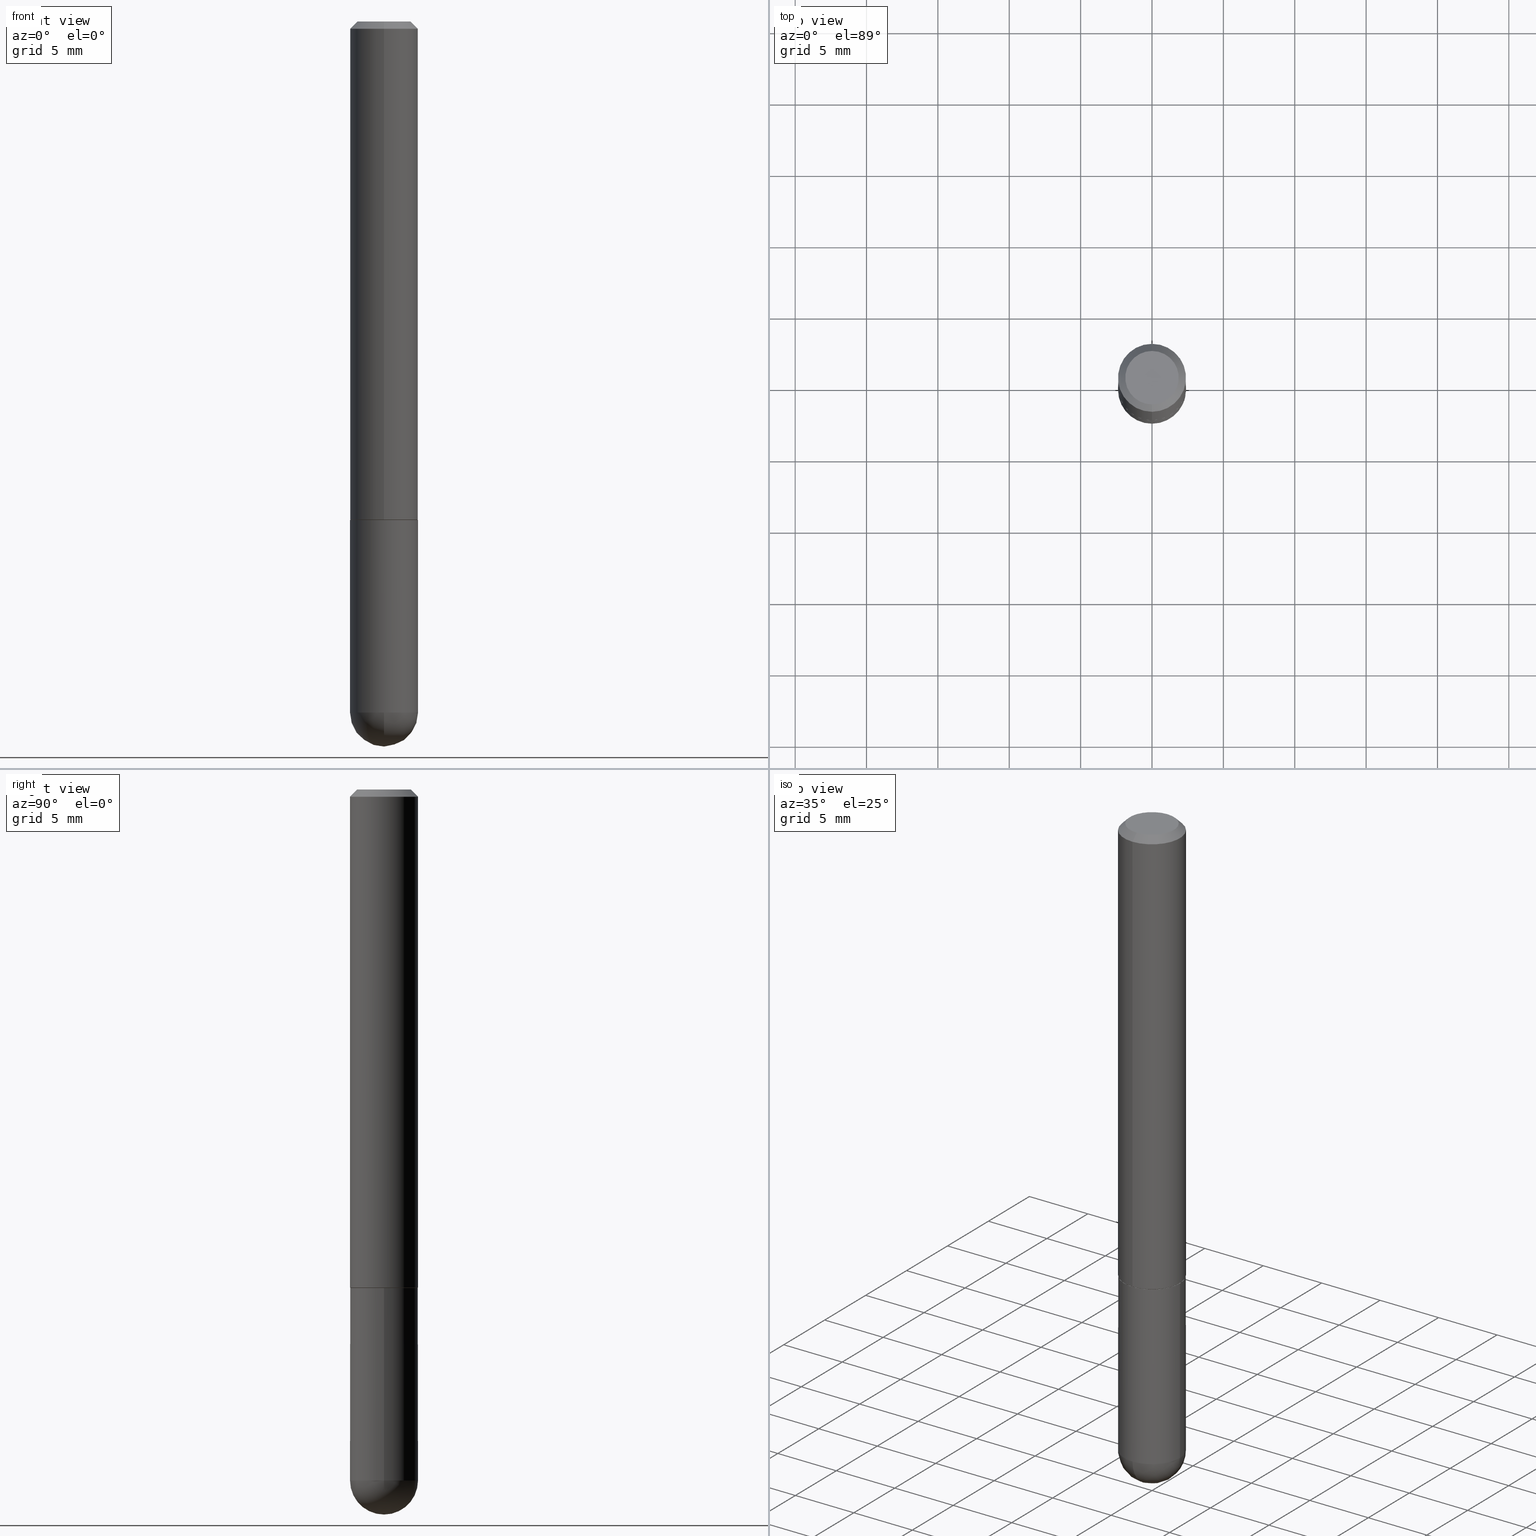
[diagram: canonical four-view strip — front | top / right | iso, engineering-drawing reading convention]
A machine part, canonical four-view strip (front | top / right | iso — engineering-drawing reading convention). The complete STEP part file that produces these views, byte-faithful:
ISO-10303-21;
HEADER;
FILE_DESCRIPTION (( 'STEP AP203' ),
    '1' );
FILE_NAME ('30912.STEP',
    '2024-02-21T16:44:57',
    ( '' ),
    ( '' ),
    'SwSTEP 2.0',
    'SolidWorks 2023',
    '' );
FILE_SCHEMA (( 'CONFIG_CONTROL_DESIGN' ));
ENDSEC;

DATA;
#1 = CIRCLE ( 'NONE', #197, 0.09375000000000001388 ) ;
#2 = DIRECTION ( 'NONE',  ( 5.024295867788362157E-15, 0.7071067811865922037, 0.7071067811865028307 ) ) ;
#3 = EDGE_LOOP ( 'NONE', ( #261, #167 ) ) ;
#4 = APPLICATION_CONTEXT ( 'configuration controlled 3d designs of mechanical parts and assemblies' ) ;
#5 = DIRECTION ( 'NONE',  ( -2.445468806185136597E-29, 3.491481338843145583E-15, 1.000000000000000000 ) ) ;
#6 = ADVANCED_FACE ( 'NONE', ( #397 ), #149, .T. ) ;
#7 = DIRECTION ( 'NONE',  ( 1.000000000000000000, -6.982962677686265922E-15, 4.876176775795935793E-29 ) ) ;
#8 = VERTEX_POINT ( 'NONE', #335 ) ;
#9 = COORDINATED_UNIVERSAL_TIME_OFFSET ( 5, 0, .BEHIND. ) ;
#10 = LENGTH_MEASURE_WITH_UNIT ( LENGTH_MEASURE( 0.02539999999999999897 ), #76 );
#11 = EDGE_LOOP ( 'NONE', ( #330, #229, #30, #180 ) ) ;
#12 = PERSON_AND_ORGANIZATION_ROLE ( 'design_supplier' ) ;
#13 = ORIENTED_EDGE ( 'NONE', *, *, #230, .F. ) ;
#14 = CIRCLE ( 'NONE', #340, 0.09274999999999999911 ) ;
#15 = PERSON_AND_ORGANIZATION ( #78, #103 ) ;
#16 = ADVANCED_FACE ( 'NONE', ( #141 ), #181, .F. ) ;
#17 = ORIENTED_EDGE ( 'NONE', *, *, #55, .F. ) ;
#18 = DATE_AND_TIME ( #239, #250 ) ;
#19 = CARTESIAN_POINT ( 'NONE',  ( -6.546527510330880958E-16, -0.09375000000000009714, 3.274165243096026796E-16 ) ) ;
#20 = CARTESIAN_POINT ( 'NONE',  ( -6.476697883553675688E-16, -0.09275000000000480083, -1.374999999999999778 ) ) ;
#21 = AXIS2_PLACEMENT_3D ( 'NONE', #96, #255, #319 ) ;
#22 = LINE ( 'NONE', #24, #295 ) ;
#23 = CYLINDRICAL_SURFACE ( 'NONE', #26, 0.09375000000000009714 ) ;
#24 = CARTESIAN_POINT ( 'NONE',  ( 6.546527510330878985E-16, 0.09374999999999991673, -0.02000000000000034736 ) ) ;
#25 = DIRECTION ( 'NONE',  ( 1.000000000000000000, -6.982962677686265922E-15, 4.876176775795935793E-29 ) ) ;
#26 = AXIS2_PLACEMENT_3D ( 'NONE', #276, #373, #120 ) ;
#27 = CARTESIAN_POINT ( 'NONE',  ( 6.625811010963275384E-16, 0.09274999999999521128, -1.375000000000000222 ) ) ;
#28 = CARTESIAN_POINT ( 'NONE',  ( 4.889594666967911153E-31, -6.984885851938190023E-17, -0.02000000000000001776 ) ) ;
#29 = LINE ( 'NONE', #162, #171 ) ;
#30 = ORIENTED_EDGE ( 'NONE', *, *, #185, .T. ) ;
#31 = AXIS2_PLACEMENT_3D ( 'NONE', #266, #393, #236 ) ;
#32 = AXIS2_PLACEMENT_3D ( 'NONE', #70, #43, #328 ) ;
#33 = EDGE_CURVE ( 'NONE', #144, #256, #119, .T. ) ;
#34 = DIRECTION ( 'NONE',  ( -2.445468806185136597E-29, 3.491481338843145583E-15, 1.000000000000000000 ) ) ;
#35 = CYLINDRICAL_SURFACE ( 'NONE', #309, 0.09375000000000001388 ) ;
#36 = VERTEX_POINT ( 'NONE', #71 ) ;
#37 = AXIS2_PLACEMENT_3D ( 'NONE', #322, #98, #227 ) ;
#38 = CC_DESIGN_APPROVAL ( #267, ( #94 ) ) ;
#39 = MECHANICAL_CONTEXT ( 'NONE', #4, 'mechanical' ) ;
#40 = EDGE_LOOP ( 'NONE', ( #233, #260, #42, #13 ) ) ;
#41 = PERSON_AND_ORGANIZATION_ROLE ( 'creator' ) ;
#42 = ORIENTED_EDGE ( 'NONE', *, *, #312, .F. ) ;
#43 = DIRECTION ( 'NONE',  ( 0.000000000000000000, 0.000000000000000000, 1.000000000000000000 ) ) ;
#44 = ORIENTED_EDGE ( 'NONE', *, *, #199, .T. ) ;
#45 = AXIS2_PLACEMENT_3D ( 'NONE', #213, #214, #337 ) ;
#46 = EDGE_CURVE ( 'NONE', #36, #110, #240, .T. ) ;
#47 = DIRECTION ( 'NONE',  ( -2.444797333483953649E-29, 3.492442925969092226E-15, 1.000000000000000000 ) ) ;
#48 = PRODUCT ( '30912', '30912', '', ( #39 ) ) ;
#49 = CARTESIAN_POINT ( 'NONE',  ( -6.661338147750496494E-16, -0.09375000000000702216, -1.906249999999999556 ) ) ;
#50 = CYLINDRICAL_SURFACE ( 'NONE', #58, 0.09375000000000001388 ) ;
#51 = DATE_AND_TIME ( #153, #217 ) ;
#52 = DIRECTION ( 'NONE',  ( -2.444797333483953649E-29, 3.492442925969092226E-15, 1.000000000000000000 ) ) ;
#53 = PRODUCT_RELATED_PRODUCT_CATEGORY ( 'detail', '', ( #48 ) ) ;
#54 = DIRECTION ( 'NONE',  ( -1.000000000000000000, 7.105427357601001070E-15, -4.926315508542082329E-29 ) ) ;
#55 = EDGE_CURVE ( 'NONE', #36, #367, #408, .T. ) ;
#56 = CYLINDRICAL_SURFACE ( 'NONE', #111, 0.09375000000000009714 ) ;
#57 = DIRECTION ( 'NONE',  ( -6.982962677686266711E-15, -1.000000000000000000, 3.505871591869138487E-15 ) ) ;
#58 = AXIS2_PLACEMENT_3D ( 'NONE', #339, #124, #25 ) ;
#59 = CC_DESIGN_PERSON_AND_ORGANIZATION_ASSIGNMENT ( #135, #168, ( #125 ) ) ;
#60 = SPHERICAL_SURFACE ( 'NONE', #21, 0.09375000000000026368 ) ;
#61 = VERTEX_POINT ( 'NONE', #49 ) ;
#62 = DIRECTION ( 'NONE',  ( 1.000000000000000000, -6.982962677686265922E-15, 4.883557194083112340E-29 ) ) ;
#63 = ADVANCED_FACE ( 'NONE', ( #136 ), #183, .T. ) ;
#64 = DIRECTION ( 'NONE',  ( 6.982962677686266711E-15, 1.000000000000000000, -3.505871591869138487E-15 ) ) ;
#65 = VERTEX_POINT ( 'NONE', #251 ) ;
#66 = VECTOR ( 'NONE', #151, 39.37007874015748854 ) ;
#67 = DIRECTION ( 'NONE',  ( 2.444797333483953649E-29, -3.492442925969092226E-15, -1.000000000000000000 ) ) ;
#68 = FACE_OUTER_BOUND ( 'NONE', #388, .T. ) ;
#69 = EDGE_CURVE ( 'NONE', #256, #110, #121, .T. ) ;
#70 = CARTESIAN_POINT ( 'NONE',  ( 0.000000000000000000, 0.000000000000000000, 0.000000000000000000 ) ) ;
#71 = CARTESIAN_POINT ( 'NONE',  ( -6.546527510330552594E-16, -0.09375000000000499600, -1.373999999999999666 ) ) ;
#72 = CC_DESIGN_PERSON_AND_ORGANIZATION_ASSIGNMENT ( #139, #364, ( #94 ) ) ;
#73 = APPROVAL_DATE_TIME ( #264, #299 ) ;
#74 = ORIENTED_EDGE ( 'NONE', *, *, #318, .F. ) ;
#75 = ADVANCED_FACE ( 'NONE', ( #248 ), #122, .F. ) ;
#76 =( LENGTH_UNIT ( ) NAMED_UNIT ( * ) SI_UNIT ( $, .METRE. ) );
#77 = DIRECTION ( 'NONE',  ( -6.982962677686266711E-15, -1.000000000000000000, 2.913971193241874850E-15 ) ) ;
#78 = PERSON ( 'UNSPECIFIED', 'UNSPECIFIED', 'UNSPECIFIED', ('UNSPECIFIED'), ('UNSPECIFIED'), ('UNSPECIFIED') ) ;
#79 = ADVANCED_FACE ( 'NONE', ( #189 ), #85, .F. ) ;
#80 = EDGE_LOOP ( 'NONE', ( #297, #44, #212, #172 ) ) ;
#81 = CIRCLE ( 'NONE', #314, 0.09375000000000019429 ) ;
#82 = CC_DESIGN_APPROVAL ( #244, ( #125 ) ) ;
#83 = VERTEX_POINT ( 'NONE', #152 ) ;
#84 = CARTESIAN_POINT ( 'NONE',  ( 3.361596333540435988E-29, -4.802109023207501761E-15, -1.375000000000000000 ) ) ;
#85 = PLANE ( 'NONE',  #277 ) ;
#86 = AXIS2_PLACEMENT_3D ( 'NONE', #287, #131, #159 ) ;
#87 = CARTESIAN_POINT ( 'NONE',  ( 4.889594666967911153E-31, -6.984885851938190023E-17, -0.02000000000000001776 ) ) ;
#88 = DIRECTION ( 'NONE',  ( -6.982962677686265922E-15, -1.000000000000000000, 2.945388672414299892E-15 ) ) ;
#89 = DIMENSIONAL_EXPONENTS ( 1.000000000000000000, 0.000000000000000000, 0.000000000000000000, 0.000000000000000000, 0.000000000000000000, 0.000000000000000000, 0.000000000000000000 ) ;
#90 = EDGE_CURVE ( 'NONE', #110, #83, #269, .T. ) ;
#91 = DIRECTION ( 'NONE',  ( 1.000000000000000000, -6.982962677686261189E-15, 0.000000000000000000 ) ) ;
#92 = CIRCLE ( 'NONE', #327, 0.09375000000000001388 ) ;
#93 = CARTESIAN_POINT ( 'NONE',  ( 4.661674911790416638E-29, -6.655636302169745441E-15, -1.906250000000000000 ) ) ;
#94 = SECURITY_CLASSIFICATION ( '', '', #242 ) ;
#95 = ORIENTED_EDGE ( 'NONE', *, *, #398, .T. ) ;
#96 = CARTESIAN_POINT ( 'NONE',  ( 4.330555133876530390E-29, -7.129818670309794948E-15, -1.906250000000000000 ) ) ;
#97 = ORIENTED_EDGE ( 'NONE', *, *, #342, .F. ) ;
#98 = DIRECTION ( 'NONE',  ( -2.444797333483953649E-29, 3.492442925969092226E-15, 1.000000000000000000 ) ) ;
#99 = ORIENTED_EDGE ( 'NONE', *, *, #331, .F. ) ;
#100 = FACE_OUTER_BOUND ( 'NONE', #160, .T. ) ;
#101 = ORIENTED_EDGE ( 'NONE', *, *, #318, .T. ) ;
#102 = CIRCLE ( 'NONE', #142, 0.09274999999999999911 ) ;
#103 = ORGANIZATION ( 'UNSPECIFIED', 'UNSPECIFIED', '' ) ;
#104 = DIRECTION ( 'NONE',  ( -4.937700262164843076E-15, -0.7071067811865873187, 0.7071067811865077157 ) ) ;
#105 = ORIENTED_EDGE ( 'NONE', *, *, #379, .T. ) ;
#106 = CALENDAR_DATE ( 2024, 21, 2 ) ;
#107 = ORIENTED_EDGE ( 'NONE', *, *, #185, .F. ) ;
#108 =( NAMED_UNIT ( * ) PLANE_ANGLE_UNIT ( ) SI_UNIT ( $, .RADIAN. ) );
#109 = EDGE_CURVE ( 'NONE', #65, #176, #223, .T. ) ;
#110 = VERTEX_POINT ( 'NONE', #341 ) ;
#111 = AXIS2_PLACEMENT_3D ( 'NONE', #157, #285, #410 ) ;
#112 = CIRCLE ( 'NONE', #210, 0.09375000000000001388 ) ;
#113 = ORIENTED_EDGE ( 'NONE', *, *, #90, .T. ) ;
#114 = ADVANCED_FACE ( 'NONE', ( #126 ), #50, .T. ) ;
#115 = CALENDAR_DATE ( 2024, 21, 2 ) ;
#116 = EDGE_LOOP ( 'NONE', ( #201, #336, #196, #238 ) ) ;
#117 = APPROVAL_ROLE ( '' ) ;
#118 = VERTEX_POINT ( 'NONE', #187 ) ;
#119 = CIRCLE ( 'NONE', #134, 0.07375000000000006550 ) ;
#120 = DIRECTION ( 'NONE',  ( -6.982962677686265922E-15, -1.000000000000000000, 3.492442925969091437E-15 ) ) ;
#121 = LINE ( 'NONE', #402, #66 ) ;
#122 = PLANE ( 'NONE',  #209 ) ;
#123 = CONICAL_SURFACE ( 'NONE', #346, 0.09374999999999998612, 0.7853981633974466137 ) ;
#124 = DIRECTION ( 'NONE',  ( -2.445468806185136597E-29, 3.491481338843145583E-15, 1.000000000000000000 ) ) ;
#125 = PRODUCT_DEFINITION ( 'UNKNOWN', '', #163, #140 ) ;
#126 = FACE_OUTER_BOUND ( 'NONE', #174, .T. ) ;
#127 = FACE_OUTER_BOUND ( 'NONE', #40, .T. ) ;
#128 = CARTESIAN_POINT ( 'NONE',  ( 4.889594666967911153E-31, -6.984885851938190023E-17, -0.02000000000000001776 ) ) ;
#129 = LINE ( 'NONE', #384, #290 ) ;
#130 = ORIENTED_EDGE ( 'NONE', *, *, #348, .T. ) ;
#131 = DIRECTION ( 'NONE',  ( -2.444797333483953649E-29, 3.492442925969092226E-15, 1.000000000000000000 ) ) ;
#132 = ORIENTED_EDGE ( 'NONE', *, *, #154, .T. ) ;
#133 = CARTESIAN_POINT ( 'NONE',  ( -5.745667073133657526E-16, -0.07375000000000006550, 2.320275079001568932E-16 ) ) ;
#134 = AXIS2_PLACEMENT_3D ( 'NONE', #365, #47, #306 ) ;
#135 = PERSON_AND_ORGANIZATION ( #78, #103 ) ;
#136 = FACE_OUTER_BOUND ( 'NONE', #320, .T. ) ;
#137 =( CONVERSION_BASED_UNIT ( 'INCH', #10 ) LENGTH_UNIT ( ) NAMED_UNIT ( #89 ) );
#138 = ORIENTED_EDGE ( 'NONE', *, *, #405, .T. ) ;
#139 = PERSON_AND_ORGANIZATION ( #78, #103 ) ;
#140 = DESIGN_CONTEXT ( 'detailed design', #219, 'design' ) ;
#141 = FACE_OUTER_BOUND ( 'NONE', #205, .T. ) ;
#142 = AXIS2_PLACEMENT_3D ( 'NONE', #407, #377, #88 ) ;
#143 = APPROVAL_ROLE ( '' ) ;
#144 = VERTEX_POINT ( 'NONE', #310 ) ;
#145 = DATE_AND_TIME ( #207, #409 ) ;
#146 = ORIENTED_EDGE ( 'NONE', *, *, #353, .F. ) ;
#147 = ADVANCED_FACE ( 'NONE', ( #221 ), #23, .T. ) ;
#148 = DIRECTION ( 'NONE',  ( 6.982962677686265133E-15, 1.000000000000000000, -2.913971193241872483E-15 ) ) ;
#149 = CONICAL_SURFACE ( 'NONE', #31, 0.09274999999999999911, 0.7853981633975080090 ) ;
#150 = CC_DESIGN_PERSON_AND_ORGANIZATION_ASSIGNMENT ( #303, #12, ( #163 ) ) ;
#151 = DIRECTION ( 'NONE',  ( -4.851104656540954809E-15, -0.7071067811865486830, -0.7071067811865462405 ) ) ;
#152 = CARTESIAN_POINT ( 'NONE',  ( 6.546527510330878985E-16, 0.09374999999999991673, -0.02000000000000034736 ) ) ;
#153 = CALENDAR_DATE ( 2024, 21, 2 ) ;
#154 = EDGE_CURVE ( 'NONE', #381, #61, #352, .T. ) ;
#155 = CARTESIAN_POINT ( 'NONE',  ( 5.149934974793625841E-16, 0.07375000000000006550, -2.703377447352527410E-16 ) ) ;
#156 = VECTOR ( 'NONE', #104, 39.37007874015748143 ) ;
#157 = CARTESIAN_POINT ( 'NONE',  ( 0.000000000000000000, 0.000000000000000000, 0.000000000000000000 ) ) ;
#158 = DIRECTION ( 'NONE',  ( -2.445468806185136597E-29, 3.491481338843145583E-15, 1.000000000000000000 ) ) ;
#159 = DIRECTION ( 'NONE',  ( -6.982962677686265922E-15, -1.000000000000000000, 2.945388672414299892E-15 ) ) ;
#160 = EDGE_LOOP ( 'NONE', ( #99, #307, #206, #359, #194 ) ) ;
#161 = CONICAL_SURFACE ( 'NONE', #86, 0.09274999999999999911, 0.7853981633975080090 ) ;
#162 = CARTESIAN_POINT ( 'NONE',  ( 6.590283874175264427E-16, 0.09274999999999521128, -1.375000000000000222 ) ) ;
#163 = PRODUCT_DEFINITION_FORMATION_WITH_SPECIFIED_SOURCE ( 'ANY', '', #48, .NOT_KNOWN. ) ;
#164 = DIRECTION ( 'NONE',  ( -2.445468806185136597E-29, 3.491481338843145583E-15, 1.000000000000000000 ) ) ;
#165 = DIRECTION ( 'NONE',  ( 6.982962677686265133E-15, 1.000000000000000000, 0.000000000000000000 ) ) ;
#166 = EDGE_CURVE ( 'NONE', #305, #65, #375, .T. ) ;
#167 = ORIENTED_EDGE ( 'NONE', *, *, #286, .T. ) ;
#168 = PERSON_AND_ORGANIZATION_ROLE ( 'creator' ) ;
#169 = ORIENTED_EDGE ( 'NONE', *, *, #109, .T. ) ;
#170 = CIRCLE ( 'NONE', #222, 0.09374999999999998612 ) ;
#171 = VECTOR ( 'NONE', #2, 39.37007874015748143 ) ;
#172 = ORIENTED_EDGE ( 'NONE', *, *, #259, .F. ) ;
#173 = APPROVAL_STATUS ( 'not_yet_approved' ) ;
#174 = EDGE_LOOP ( 'NONE', ( #101, #385, #358, #333, #391 ) ) ;
#175 = APPROVAL_STATUS ( 'not_yet_approved' ) ;
#176 = VERTEX_POINT ( 'NONE', #311 ) ;
#177 = VECTOR ( 'NONE', #308, 39.37007874015748143 ) ;
#178 = LOCAL_TIME ( 11, 44, 57.00000000000000000, #361 ) ;
#179 = DATE_TIME_ROLE ( 'classification_date' ) ;
#180 = ORIENTED_EDGE ( 'NONE', *, *, #211, .T. ) ;
#181 = PLANE ( 'NONE',  #231 ) ;
#182 = CC_DESIGN_DATE_AND_TIME_ASSIGNMENT ( #237, #296, ( #125 ) ) ;
#183 = SPHERICAL_SURFACE ( 'NONE', #334, 0.09375000000000026368 ) ;
#184 = AXIS2_PLACEMENT_3D ( 'NONE', #87, #52, #57 ) ;
#185 = EDGE_CURVE ( 'NONE', #144, #83, #22, .T. ) ;
#186 = CC_DESIGN_APPROVAL ( #299, ( #163 ) ) ;
#187 = CARTESIAN_POINT ( 'NONE',  ( -6.476697883553675688E-16, -0.09275000000000480083, -1.374999999999999778 ) ) ;
#188 = DIRECTION ( 'NONE',  ( -1.000000000000000000, 6.982962677686265133E-15, -4.883557194083112901E-29 ) ) ;
#189 = FACE_OUTER_BOUND ( 'NONE', #362, .T. ) ;
#190 = CLOSED_SHELL ( 'NONE', ( #114, #63, #363, #16, #324 ) ) ;
#191 = AXIS2_PLACEMENT_3D ( 'NONE', #275, #400, #77 ) ;
#192 = FACE_OUTER_BOUND ( 'NONE', #116, .T. ) ;
#193 = CARTESIAN_POINT ( 'NONE',  ( 4.661674911790416638E-29, -6.655636302169745441E-15, -1.906250000000000000 ) ) ;
#194 = ORIENTED_EDGE ( 'NONE', *, *, #379, .F. ) ;
#195 = DIRECTION ( 'NONE',  ( -2.444797333483953649E-29, 3.492442925969092620E-15, 1.000000000000000000 ) ) ;
#196 = ORIENTED_EDGE ( 'NONE', *, *, #46, .T. ) ;
#197 = AXIS2_PLACEMENT_3D ( 'NONE', #323, #34, #315 ) ;
#198 = DIRECTION ( 'NONE',  ( -2.444797333483953649E-29, 3.492442925969092226E-15, 1.000000000000000000 ) ) ;
#199 = EDGE_CURVE ( 'NONE', #243, #118, #102, .T. ) ;
#200 = DIRECTION ( 'NONE',  ( -6.982962677686265922E-15, -1.000000000000000000, 2.945388672414299892E-15 ) ) ;
#201 = ORIENTED_EDGE ( 'NONE', *, *, #398, .F. ) ;
#202 = CIRCLE ( 'NONE', #394, 0.09375000000000026368 ) ;
#203 = DIRECTION ( 'NONE',  ( -2.444797333483953649E-29, 3.492442925969092620E-15, 1.000000000000000000 ) ) ;
#204 = PERSON_AND_ORGANIZATION ( #78, #103 ) ;
#205 = EDGE_LOOP ( 'NONE', ( #169, #105 ) ) ;
#206 = ORIENTED_EDGE ( 'NONE', *, *, #230, .T. ) ;
#207 = CALENDAR_DATE ( 2024, 21, 2 ) ;
#208 = ORIENTED_EDGE ( 'NONE', *, *, #90, .F. ) ;
#209 = AXIS2_PLACEMENT_3D ( 'NONE', #155, #374, #406 ) ;
#210 = AXIS2_PLACEMENT_3D ( 'NONE', #291, #225, #288 ) ;
#211 = EDGE_CURVE ( 'NONE', #83, #110, #170, .T. ) ;
#212 = ORIENTED_EDGE ( 'NONE', *, *, #235, .T. ) ;
#213 = CARTESIAN_POINT ( 'NONE',  ( 3.362519608504562260E-29, -4.800786840909324930E-15, -1.375000000000000000 ) ) ;
#214 = DIRECTION ( 'NONE',  ( -2.445468806185136597E-29, 3.491481338843145583E-15, 1.000000000000000000 ) ) ;
#215 = ADVANCED_FACE ( 'NONE', ( #192 ), #56, .T. ) ;
#216 = VECTOR ( 'NONE', #203, 39.37007874015748143 ) ;
#217 = LOCAL_TIME ( 11, 44, 57.00000000000000000, #245 ) ;
#218 = DIRECTION ( 'NONE',  ( -7.105427357601001070E-15, -1.000000000000000000, 0.000000000000000000 ) ) ;
#219 = APPLICATION_CONTEXT ( 'configuration controlled 3d designs of mechanical parts and assemblies' ) ;
#220 = DIRECTION ( 'NONE',  ( -2.444797333483953649E-29, 3.492442925969092226E-15, 1.000000000000000000 ) ) ;
#221 = FACE_OUTER_BOUND ( 'NONE', #246, .T. ) ;
#222 = AXIS2_PLACEMENT_3D ( 'NONE', #247, #220, #343 ) ;
#223 = CIRCLE ( 'NONE', #45, 0.09375000000000001388 ) ;
#224 = APPROVAL_PERSON_ORGANIZATION ( #301, #299, #392 ) ;
#225 = DIRECTION ( 'NONE',  ( -2.445468806185136597E-29, 3.491481338843145583E-15, 1.000000000000000000 ) ) ;
#226 = CC_DESIGN_PERSON_AND_ORGANIZATION_ASSIGNMENT ( #204, #41, ( #163 ) ) ;
#227 = DIRECTION ( 'NONE',  ( -6.982962677686265922E-15, -1.000000000000000000, 3.492442925969092226E-15 ) ) ;
#228 = DIRECTION ( 'NONE',  ( -6.982962677686266711E-15, -1.000000000000000000, 2.913971193241874850E-15 ) ) ;
#229 = ORIENTED_EDGE ( 'NONE', *, *, #33, .F. ) ;
#230 = EDGE_CURVE ( 'NONE', #61, #305, #345, .T. ) ;
#231 = AXIS2_PLACEMENT_3D ( 'NONE', #329, #396, #300 ) ;
#232 = CARTESIAN_POINT ( 'NONE',  ( 0.09375000000000001388, -6.382864322572621901E-15, -1.906250000000000000 ) ) ;
#233 = ORIENTED_EDGE ( 'NONE', *, *, #154, .F. ) ;
#234 = CARTESIAN_POINT ( 'NONE',  ( 3.359151536206952494E-29, -4.798616580281532316E-15, -1.373999999999999888 ) ) ;
#235 = EDGE_CURVE ( 'NONE', #118, #36, #344, .T. ) ;
#236 = DIRECTION ( 'NONE',  ( -6.982962677686265922E-15, -1.000000000000000000, 2.945388672414299892E-15 ) ) ;
#237 = DATE_AND_TIME ( #106, #354 ) ;
#238 = ORIENTED_EDGE ( 'NONE', *, *, #211, .F. ) ;
#239 = CALENDAR_DATE ( 2024, 21, 2 ) ;
#240 = LINE ( 'NONE', #19, #216 ) ;
#241 = PRODUCT_DEFINITION_SHAPE ( 'NONE', 'NONE',  #125 ) ;
#242 = SECURITY_CLASSIFICATION_LEVEL ( 'unclassified' ) ;
#243 = VERTEX_POINT ( 'NONE', #27 ) ;
#244 = APPROVAL ( #173, 'UNSPECIFIED' ) ;
#245 = COORDINATED_UNIVERSAL_TIME_OFFSET ( 5, 0, .BEHIND. ) ;
#246 = EDGE_LOOP ( 'NONE', ( #258, #95, #208, #349 ) ) ;
#247 = CARTESIAN_POINT ( 'NONE',  ( 4.889594666967911153E-31, -6.984885851938190023E-17, -0.02000000000000001776 ) ) ;
#248 = FACE_OUTER_BOUND ( 'NONE', #3, .T. ) ;
#249 = DIRECTION ( 'NONE',  ( -2.444797333483953089E-29, 3.492442925969092620E-15, 1.000000000000000000 ) ) ;
#250 = LOCAL_TIME ( 11, 44, 57.00000000000000000, #9 ) ;
#251 = CARTESIAN_POINT ( 'NONE',  ( 0.09375000000000001388, -5.455439591942412434E-15, -1.375000000000000000 ) ) ;
#252 = UNCERTAINTY_MEASURE_WITH_UNIT (LENGTH_MEASURE( 1.000000000000000082E-05 ), #137, 'distance_accuracy_value', 'NONE');
#253 = CARTESIAN_POINT ( 'NONE',  ( 4.661674911790416638E-29, -6.655636302169745441E-15, -1.906250000000000000 ) ) ;
#254 = MANIFOLD_SOLID_BREP ( 'Body-Move/Copy2[2]', #368 ) ;
#255 = DIRECTION ( 'NONE',  ( -1.000000000000000000, 6.982962677686265133E-15, -4.883557194083112901E-29 ) ) ;
#256 = VERTEX_POINT ( 'NONE', #133 ) ;
#257 = CARTESIAN_POINT ( 'NONE',  ( 4.563826426436916486E-29, -7.451404513955337857E-15, -2.000000000000000444 ) ) ;
#258 = ORIENTED_EDGE ( 'NONE', *, *, #55, .T. ) ;
#259 = EDGE_CURVE ( 'NONE', #367, #36, #81, .T. ) ;
#260 = ORIENTED_EDGE ( 'NONE', *, *, #353, .T. ) ;
#261 = ORIENTED_EDGE ( 'NONE', *, *, #33, .T. ) ;
#262 = CARTESIAN_POINT ( 'NONE',  ( 3.361596333540435988E-29, -4.802109023207501761E-15, -1.375000000000000000 ) ) ;
#263 = MANIFOLD_SOLID_BREP ( 'Body-Move/Copy2[1]', #190 ) ;
#264 = DATE_AND_TIME ( #115, #178 ) ;
#265 = COORDINATED_UNIVERSAL_TIME_OFFSET ( 5, 0, .BEHIND. ) ;
#266 = CARTESIAN_POINT ( 'NONE',  ( 3.361596333540435988E-29, -4.802109023207501761E-15, -1.375000000000000000 ) ) ;
#267 = APPROVAL ( #399, 'UNSPECIFIED' ) ;
#268 =( NAMED_UNIT ( * ) SI_UNIT ( $, .STERADIAN. ) SOLID_ANGLE_UNIT ( ) );
#269 = CIRCLE ( 'NONE', #184, 0.09374999999999998612 ) ;
#270 = EDGE_LOOP ( 'NONE', ( #302, #326, #113, #107 ) ) ;
#271 = PERSON_AND_ORGANIZATION ( #78, #103 ) ;
#272 = ORIENTED_EDGE ( 'NONE', *, *, #235, .F. ) ;
#273 = CC_DESIGN_PERSON_AND_ORGANIZATION_ASSIGNMENT ( #271, #325, ( #48 ) ) ;
#274 = PERSON_AND_ORGANIZATION ( #78, #103 ) ;
#275 = CARTESIAN_POINT ( 'NONE',  ( 3.359151536206952494E-29, -4.798616580281532316E-15, -1.373999999999999888 ) ) ;
#276 = CARTESIAN_POINT ( 'NONE',  ( 0.000000000000000000, 0.000000000000000000, 0.000000000000000000 ) ) ;
#277 = AXIS2_PLACEMENT_3D ( 'NONE', #84, #249, #281 ) ;
#278 = CC_DESIGN_SECURITY_CLASSIFICATION ( #94, ( #163 ) ) ;
#279 = ADVANCED_FACE ( 'NONE', ( #316 ), #360, .T. ) ;
#280 = APPROVAL_DATE_TIME ( #51, #267 ) ;
#281 = DIRECTION ( 'NONE',  ( -6.982962677686265922E-15, -1.000000000000000000, 3.492442925969092620E-15 ) ) ;
#282 = CARTESIAN_POINT ( 'NONE',  ( 4.330555133876530390E-29, -7.129818670309794948E-15, -1.906250000000000000 ) ) ;
#283 = DIRECTION ( 'NONE',  ( 4.937700262164538576E-15, 0.7071067811865437980, -0.7071067811865511255 ) ) ;
#284 = AXIS2_PLACEMENT_3D ( 'NONE', #282, #54, #218 ) ;
#285 = DIRECTION ( 'NONE',  ( -2.444797333483953649E-29, 3.492442925969092226E-15, 1.000000000000000000 ) ) ;
#286 = EDGE_CURVE ( 'NONE', #256, #144, #370, .T. ) ;
#287 = CARTESIAN_POINT ( 'NONE',  ( 3.361596333540435988E-29, -4.802109023207501761E-15, -1.375000000000000000 ) ) ;
#288 = DIRECTION ( 'NONE',  ( 1.000000000000000000, -6.982962677686261189E-15, 0.000000000000000000 ) ) ;
#289 = CIRCLE ( 'NONE', #304, 0.09375000000000001388 ) ;
#290 = VECTOR ( 'NONE', #195, 39.37007874015748143 ) ;
#291 = CARTESIAN_POINT ( 'NONE',  ( 3.362519608504562260E-29, -4.800786840909324930E-15, -1.375000000000000000 ) ) ;
#292 = DIRECTION ( 'NONE',  ( -2.444797333483953649E-29, 3.492442925969092226E-15, 1.000000000000000000 ) ) ;
#293 = DIRECTION ( 'NONE',  ( 6.982962677686266711E-15, 1.000000000000000000, -3.505871591869138487E-15 ) ) ;
#294 = VERTEX_POINT ( 'NONE', #357 ) ;
#295 = VECTOR ( 'NONE', #283, 39.37007874015748854 ) ;
#296 = DATE_TIME_ROLE ( 'creation_date' ) ;
#297 = ORIENTED_EDGE ( 'NONE', *, *, #405, .F. ) ;
#298 = APPROVAL_DATE_TIME ( #18, #244 ) ;
#299 = APPROVAL ( #175, 'UNSPECIFIED' ) ;
#300 = DIRECTION ( 'NONE',  ( -1.000000000000000000, 6.982962677686265922E-15, -4.876176775795935793E-29 ) ) ;
#301 = PERSON_AND_ORGANIZATION ( #78, #103 ) ;
#302 = ORIENTED_EDGE ( 'NONE', *, *, #286, .F. ) ;
#303 = PERSON_AND_ORGANIZATION ( #78, #103 ) ;
#304 = AXIS2_PLACEMENT_3D ( 'NONE', #93, #158, #387 ) ;
#305 = VERTEX_POINT ( 'NONE', #232 ) ;
#306 = DIRECTION ( 'NONE',  ( -6.982962677686265922E-15, -1.000000000000000000, 3.492442925969092226E-15 ) ) ;
#307 = ORIENTED_EDGE ( 'NONE', *, *, #342, .T. ) ;
#308 = DIRECTION ( 'NONE',  ( -2.445468806185136877E-29, 3.491481338843145188E-15, 1.000000000000000000 ) ) ;
#309 = AXIS2_PLACEMENT_3D ( 'NONE', #386, #5, #7 ) ;
#310 = CARTESIAN_POINT ( 'NONE',  ( 5.848231242562252906E-16, 0.07375000000000006550, -2.831078236802846410E-16 ) ) ;
#311 = CARTESIAN_POINT ( 'NONE',  ( -0.09375000000000001388, -5.062077756764441261E-15, -1.375000000000000000 ) ) ;
#312 = EDGE_CURVE ( 'NONE', #305, #8, #1, .T. ) ;
#313 = CARTESIAN_POINT ( 'NONE',  ( 4.330555133876530390E-29, -7.129818670309794948E-15, -1.906250000000000000 ) ) ;
#314 = AXIS2_PLACEMENT_3D ( 'NONE', #234, #198, #228 ) ;
#315 = DIRECTION ( 'NONE',  ( 1.000000000000000000, -6.982962677686261189E-15, 0.000000000000000000 ) ) ;
#316 = FACE_OUTER_BOUND ( 'NONE', #11, .T. ) ;
#317 = ORIENTED_EDGE ( 'NONE', *, *, #199, .F. ) ;
#318 = EDGE_CURVE ( 'NONE', #8, #294, #92, .T. ) ;
#319 = DIRECTION ( 'NONE',  ( 6.982962677686265133E-15, 1.000000000000000000, -2.913971193241872483E-15 ) ) ;
#320 = EDGE_LOOP ( 'NONE', ( #146, #132, #97, #74 ) ) ;
#321 = AXIS2_PLACEMENT_3D ( 'NONE', #28, #411, #64 ) ;
#322 = CARTESIAN_POINT ( 'NONE',  ( 6.244050990638739127E-46, -8.919754375128736204E-32, -2.554015789006390164E-17 ) ) ;
#323 = CARTESIAN_POINT ( 'NONE',  ( 4.661674911790416638E-29, -6.655636302169745441E-15, -1.906250000000000000 ) ) ;
#324 = ADVANCED_FACE ( 'NONE', ( #100 ), #35, .T. ) ;
#325 = PERSON_AND_ORGANIZATION_ROLE ( 'design_owner' ) ;
#326 = ORIENTED_EDGE ( 'NONE', *, *, #69, .T. ) ;
#327 = AXIS2_PLACEMENT_3D ( 'NONE', #193, #164, #347 ) ;
#328 = DIRECTION ( 'NONE',  ( 1.000000000000000000, 0.000000000000000000, 0.000000000000000000 ) ) ;
#329 = CARTESIAN_POINT ( 'NONE',  ( 6.546527510331211293E-16, 0.09374999999999521216, -1.375000000000000222 ) ) ;
#330 = ORIENTED_EDGE ( 'NONE', *, *, #69, .F. ) ;
#331 = EDGE_CURVE ( 'NONE', #294, #176, #351, .T. ) ;
#332 = APPLICATION_PROTOCOL_DEFINITION ( 'international standard', 'config_control_design', 1994, #219 ) ;
#333 = ORIENTED_EDGE ( 'NONE', *, *, #166, .F. ) ;
#334 = AXIS2_PLACEMENT_3D ( 'NONE', #313, #188, #148 ) ;
#335 = CARTESIAN_POINT ( 'NONE',  ( 6.546527510331332580E-16, 0.09374999999999322764, -1.906250000000000222 ) ) ;
#336 = ORIENTED_EDGE ( 'NONE', *, *, #259, .T. ) ;
#337 = DIRECTION ( 'NONE',  ( 1.000000000000000000, -6.982962677686261189E-15, 0.000000000000000000 ) ) ;
#338 = CC_DESIGN_DATE_AND_TIME_ASSIGNMENT ( #145, #179, ( #94 ) ) ;
#339 = CARTESIAN_POINT ( 'NONE',  ( 0.000000000000000000, 0.000000000000000000, 0.000000000000000000 ) ) ;
#340 = AXIS2_PLACEMENT_3D ( 'NONE', #262, #292, #200 ) ;
#341 = CARTESIAN_POINT ( 'NONE',  ( -6.431716872910804923E-16, -0.09375000000000005551, -0.01999999999999968817 ) ) ;
#342 = EDGE_CURVE ( 'NONE', #294, #61, #289, .T. ) ;
#343 = DIRECTION ( 'NONE',  ( -6.982962677686266711E-15, -1.000000000000000000, 3.505871591869138487E-15 ) ) ;
#344 = LINE ( 'NONE', #20, #156 ) ;
#345 = CIRCLE ( 'NONE', #401, 0.09375000000000001388 ) ;
#346 = AXIS2_PLACEMENT_3D ( 'NONE', #128, #67, #293 ) ;
#347 = DIRECTION ( 'NONE',  ( 1.000000000000000000, -6.982962677686261189E-15, 0.000000000000000000 ) ) ;
#348 = EDGE_CURVE ( 'NONE', #118, #243, #14, .T. ) ;
#349 = ORIENTED_EDGE ( 'NONE', *, *, #46, .F. ) ;
#350 = CARTESIAN_POINT ( 'NONE',  ( -0.09375000000000001388, 6.661338147750940229E-16, -4.611501647113973995E-30 ) ) ;
#351 = LINE ( 'NONE', #350, #382 ) ;
#352 = CIRCLE ( 'NONE', #284, 0.09375000000000026368 ) ;
#353 = EDGE_CURVE ( 'NONE', #381, #8, #202, .T. ) ;
#354 = LOCAL_TIME ( 11, 44, 57.00000000000000000, #265 ) ;
#355 = FACE_OUTER_BOUND ( 'NONE', #270, .T. ) ;
#356 = ADVANCED_FACE ( 'NONE', ( #68 ), #161, .T. ) ;
#357 = CARTESIAN_POINT ( 'NONE',  ( -0.09375000000000001388, -5.062077756764441261E-15, -1.906250000000000000 ) ) ;
#358 = ORIENTED_EDGE ( 'NONE', *, *, #109, .F. ) ;
#359 = ORIENTED_EDGE ( 'NONE', *, *, #166, .T. ) ;
#360 = CONICAL_SURFACE ( 'NONE', #321, 0.09374999999999998612, 0.7853981633974466137 ) ;
#361 = COORDINATED_UNIVERSAL_TIME_OFFSET ( 5, 0, .BEHIND. ) ;
#362 = EDGE_LOOP ( 'NONE', ( #371, #317 ) ) ;
#363 = ADVANCED_FACE ( 'NONE', ( #127 ), #60, .T. ) ;
#364 = PERSON_AND_ORGANIZATION_ROLE ( 'classification_officer' ) ;
#365 = CARTESIAN_POINT ( 'NONE',  ( 6.244050990638739127E-46, -8.919754375128736204E-32, -2.554015789006390164E-17 ) ) ;
#366 = COORDINATED_UNIVERSAL_TIME_OFFSET ( 5, 0, .BEHIND. ) ;
#367 = VERTEX_POINT ( 'NONE', #380 ) ;
#368 = CLOSED_SHELL ( 'NONE', ( #356, #147, #376, #279, #215, #6, #79, #75 ) ) ;
#369 = APPLICATION_PROTOCOL_DEFINITION ( 'international standard', 'config_control_design', 1994, #4 ) ;
#370 = CIRCLE ( 'NONE', #37, 0.07375000000000006550 ) ;
#371 = ORIENTED_EDGE ( 'NONE', *, *, #348, .F. ) ;
#372 = APPROVAL_PERSON_ORGANIZATION ( #15, #244, #143 ) ;
#373 = DIRECTION ( 'NONE',  ( -2.444797333483953649E-29, 3.492442925969092226E-15, 1.000000000000000000 ) ) ;
#374 = DIRECTION ( 'NONE',  ( 2.444797333483953089E-29, -3.492442925969092620E-15, -1.000000000000000000 ) ) ;
#375 = LINE ( 'NONE', #404, #177 ) ;
#376 = ADVANCED_FACE ( 'NONE', ( #355 ), #123, .T. ) ;
#377 = DIRECTION ( 'NONE',  ( -2.444797333483953649E-29, 3.492442925969092226E-15, 1.000000000000000000 ) ) ;
#378 = DIRECTION ( 'NONE',  ( -2.445468806185136597E-29, 3.491481338843145583E-15, 1.000000000000000000 ) ) ;
#379 = EDGE_CURVE ( 'NONE', #176, #65, #112, .T. ) ;
#380 = CARTESIAN_POINT ( 'NONE',  ( 6.661338147751117722E-16, 0.09374999999999537870, -1.374000000000000110 ) ) ;
#381 = VERTEX_POINT ( 'NONE', #257 ) ;
#382 = VECTOR ( 'NONE', #412, 39.37007874015748143 ) ;
#383 = ADVANCED_BREP_SHAPE_REPRESENTATION ( '30912', ( #263, #254, #32 ), #389 ) ;
#384 = CARTESIAN_POINT ( 'NONE',  ( 6.661338147750944173E-16, 0.09375000000000009714, -3.274165243096026796E-16 ) ) ;
#385 = ORIENTED_EDGE ( 'NONE', *, *, #331, .T. ) ;
#386 = CARTESIAN_POINT ( 'NONE',  ( 0.000000000000000000, 0.000000000000000000, 0.000000000000000000 ) ) ;
#387 = DIRECTION ( 'NONE',  ( 1.000000000000000000, -6.982962677686261189E-15, 0.000000000000000000 ) ) ;
#388 = EDGE_LOOP ( 'NONE', ( #130, #138, #17, #272 ) ) ;
#389 =( GEOMETRIC_REPRESENTATION_CONTEXT ( 3 ) GLOBAL_UNCERTAINTY_ASSIGNED_CONTEXT ( ( #252 ) ) GLOBAL_UNIT_ASSIGNED_CONTEXT ( ( #137, #108, #268 ) ) REPRESENTATION_CONTEXT ( 'NONE', 'WORKASPACE' ) );
#390 = CARTESIAN_POINT ( 'NONE',  ( 4.330555133876530390E-29, -7.129818670309794948E-15, -1.906250000000000000 ) ) ;
#391 = ORIENTED_EDGE ( 'NONE', *, *, #312, .T. ) ;
#392 = APPROVAL_ROLE ( '' ) ;
#393 = DIRECTION ( 'NONE',  ( -2.444797333483953649E-29, 3.492442925969092226E-15, 1.000000000000000000 ) ) ;
#394 = AXIS2_PLACEMENT_3D ( 'NONE', #390, #62, #165 ) ;
#395 = APPROVAL_PERSON_ORGANIZATION ( #274, #267, #117 ) ;
#396 = DIRECTION ( 'NONE',  ( 2.438088387897960049E-29, -3.491481338843145188E-15, -1.000000000000000000 ) ) ;
#397 = FACE_OUTER_BOUND ( 'NONE', #80, .T. ) ;
#398 = EDGE_CURVE ( 'NONE', #367, #83, #129, .T. ) ;
#399 = APPROVAL_STATUS ( 'not_yet_approved' ) ;
#400 = DIRECTION ( 'NONE',  ( -2.444797333483953649E-29, 3.492442925969092226E-15, 1.000000000000000000 ) ) ;
#401 = AXIS2_PLACEMENT_3D ( 'NONE', #253, #378, #91 ) ;
#402 = CARTESIAN_POINT ( 'NONE',  ( -6.431716872910804923E-16, -0.09375000000000005551, -0.01999999999999968817 ) ) ;
#403 = SHAPE_DEFINITION_REPRESENTATION ( #241, #383 ) ;
#404 = CARTESIAN_POINT ( 'NONE',  ( 0.09375000000000001388, -6.546527510330875041E-16, 4.571415727308690506E-30 ) ) ;
#405 = EDGE_CURVE ( 'NONE', #243, #367, #29, .T. ) ;
#406 = DIRECTION ( 'NONE',  ( 6.982962677686265922E-15, 1.000000000000000000, -3.492442925969092620E-15 ) ) ;
#407 = CARTESIAN_POINT ( 'NONE',  ( 3.361596333540435988E-29, -4.802109023207501761E-15, -1.375000000000000000 ) ) ;
#408 = CIRCLE ( 'NONE', #191, 0.09375000000000019429 ) ;
#409 = LOCAL_TIME ( 11, 44, 57.00000000000000000, #366 ) ;
#410 = DIRECTION ( 'NONE',  ( -6.982962677686265922E-15, -1.000000000000000000, 3.492442925969091437E-15 ) ) ;
#411 = DIRECTION ( 'NONE',  ( 2.444797333483953649E-29, -3.492442925969092226E-15, -1.000000000000000000 ) ) ;
#412 = DIRECTION ( 'NONE',  ( -2.445468806185136877E-29, 3.491481338843145188E-15, 1.000000000000000000 ) ) ;
ENDSEC;
END-ISO-10303-21;
